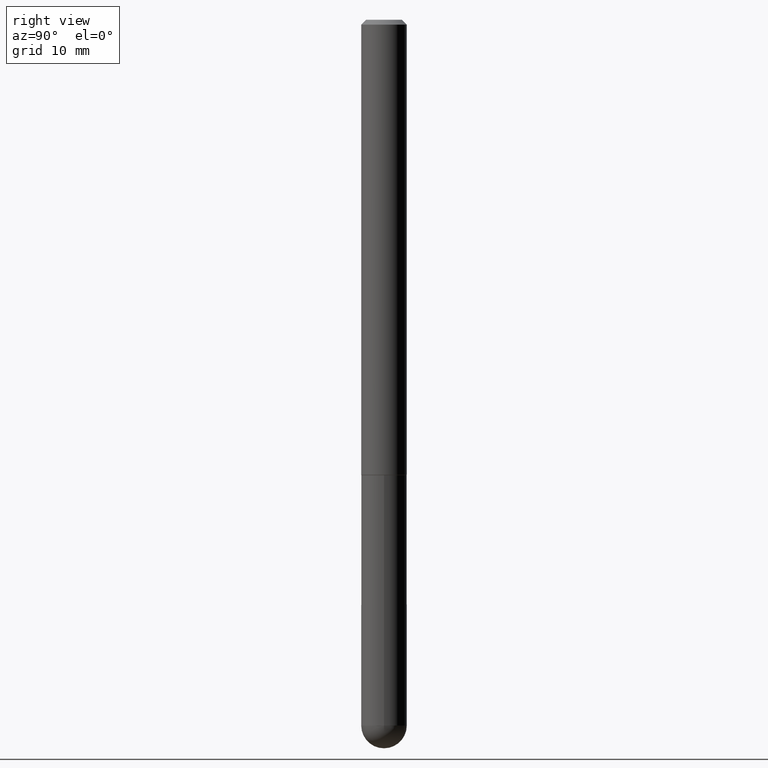
[diagram: clean part render]
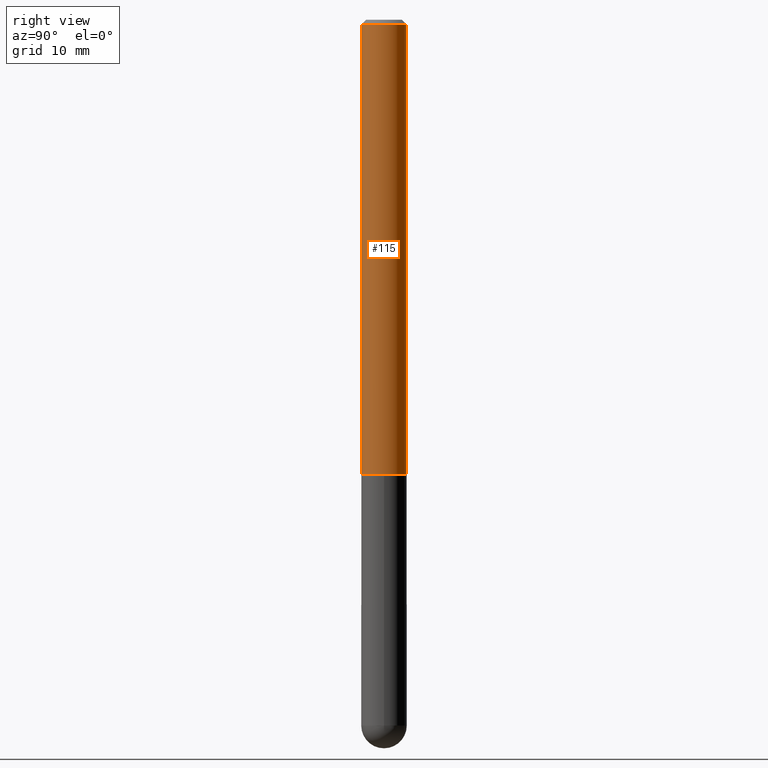
[diagram: same view with one face highlighted and labeled with its STEP entity id]
A machine part, right view. The second image highlights one B-rep face of the part: STEP entity #115.
In plain terms, the highlighted cylindrical surface (edge-blend (fillet) strip) has radius 2.3813 mm, axis along (-0, 0, 1).
Its self-contained STEP definition (entity closure, byte-faithful):
#7 = CARTESIAN_POINT ( 'NONE',  ( -6.431716872910807882E-16, -0.09375000000000011102, -0.01999999999999968817 ) ) ;
#11 = CIRCLE ( 'NONE', #394, 0.09375000000000024980 ) ;
#16 = CARTESIAN_POINT ( 'NONE',  ( 4.892014791988263253E-31, -6.981420095164085175E-17, -0.02000000000000001776 ) ) ;
#22 = DIRECTION ( 'NONE',  ( -2.446007395994129735E-29, 3.490710047582039432E-15, 1.000000000000000000 ) ) ;
#42 = ORIENTED_EDGE ( 'NONE', *, *, #100, .F. ) ;
#44 = EDGE_CURVE ( 'NONE', #124, #187, #64, .T. ) ;
#46 = DIRECTION ( 'NONE',  ( -2.446007395994129455E-29, 3.490710047582039432E-15, 1.000000000000000000 ) ) ;
#47 = VECTOR ( 'NONE', #22, 39.37007874015748143 ) ;
#58 = VERTEX_POINT ( 'NONE', #228 ) ;
#64 = LINE ( 'NONE', #304, #47 ) ;
#72 = DIRECTION ( 'NONE',  ( -6.982962677686266711E-15, -1.000000000000000000, 3.505871591869136121E-15 ) ) ;
#100 = EDGE_CURVE ( 'NONE', #159, #187, #234, .T. ) ;
#101 = DIRECTION ( 'NONE',  ( -2.446007395994129455E-29, 3.490710047582039432E-15, 1.000000000000000000 ) ) ;
#115 = ADVANCED_FACE ( 'NONE', ( #199 ), #329, .T. ) ;
#124 = VERTEX_POINT ( 'NONE', #169 ) ;
#159 = VERTEX_POINT ( 'NONE', #7 ) ;
#165 = CARTESIAN_POINT ( 'NONE',  ( 0.000000000000000000, 0.000000000000000000, 0.000000000000000000 ) ) ;
#166 = EDGE_LOOP ( 'NONE', ( #281, #170, #42, #370 ) ) ;
#169 = CARTESIAN_POINT ( 'NONE',  ( 6.661338147751182803E-16, 0.09374999999999368561, -1.874000000000000332 ) ) ;
#170 = ORIENTED_EDGE ( 'NONE', *, *, #44, .T. ) ;
#187 = VERTEX_POINT ( 'NONE', #385 ) ;
#189 = AXIS2_PLACEMENT_3D ( 'NONE', #165, #46, #261 ) ;
#199 = FACE_OUTER_BOUND ( 'NONE', #166, .T. ) ;
#225 = DIRECTION ( 'NONE',  ( -6.982962677686265133E-15, -1.000000000000000000, 2.913971193241872878E-15 ) ) ;
#228 = CARTESIAN_POINT ( 'NONE',  ( -6.546527510330432293E-16, -0.09375000000000678624, -1.873999999999999666 ) ) ;
#230 = DIRECTION ( 'NONE',  ( -2.446007395994129735E-29, 3.490710047582039432E-15, 1.000000000000000000 ) ) ;
#231 = EDGE_CURVE ( 'NONE', #58, #159, #332, .T. ) ;
#234 = CIRCLE ( 'NONE', #340, 0.09375000000000004163 ) ;
#251 = EDGE_CURVE ( 'NONE', #58, #124, #11, .T. ) ;
#261 = DIRECTION ( 'NONE',  ( -6.982962677686266711E-15, -1.000000000000000000, 3.490710047582039826E-15 ) ) ;
#264 = DIRECTION ( 'NONE',  ( -2.446007395994129455E-29, 3.490710047582039432E-15, 1.000000000000000000 ) ) ;
#270 = CARTESIAN_POINT ( 'NONE',  ( -6.546527510330884902E-16, -0.09375000000000013878, 3.272540669608167268E-16 ) ) ;
#281 = ORIENTED_EDGE ( 'NONE', *, *, #251, .T. ) ;
#304 = CARTESIAN_POINT ( 'NONE',  ( 6.661338147750948117E-16, 0.09375000000000013878, -3.272540669608167268E-16 ) ) ;
#329 = CYLINDRICAL_SURFACE ( 'NONE', #189, 0.09375000000000013878 ) ;
#332 = LINE ( 'NONE', #270, #363 ) ;
#340 = AXIS2_PLACEMENT_3D ( 'NONE', #16, #264, #72 ) ;
#363 = VECTOR ( 'NONE', #230, 39.37007874015748143 ) ;
#370 = ORIENTED_EDGE ( 'NONE', *, *, #231, .F. ) ;
#383 = CARTESIAN_POINT ( 'NONE',  ( 4.583817860092998412E-29, -6.541590629168742306E-15, -1.874000000000000110 ) ) ;
#385 = CARTESIAN_POINT ( 'NONE',  ( 6.546527510330881944E-16, 0.09374999999999997224, -0.02000000000000034736 ) ) ;
#394 = AXIS2_PLACEMENT_3D ( 'NONE', #383, #101, #225 ) ;